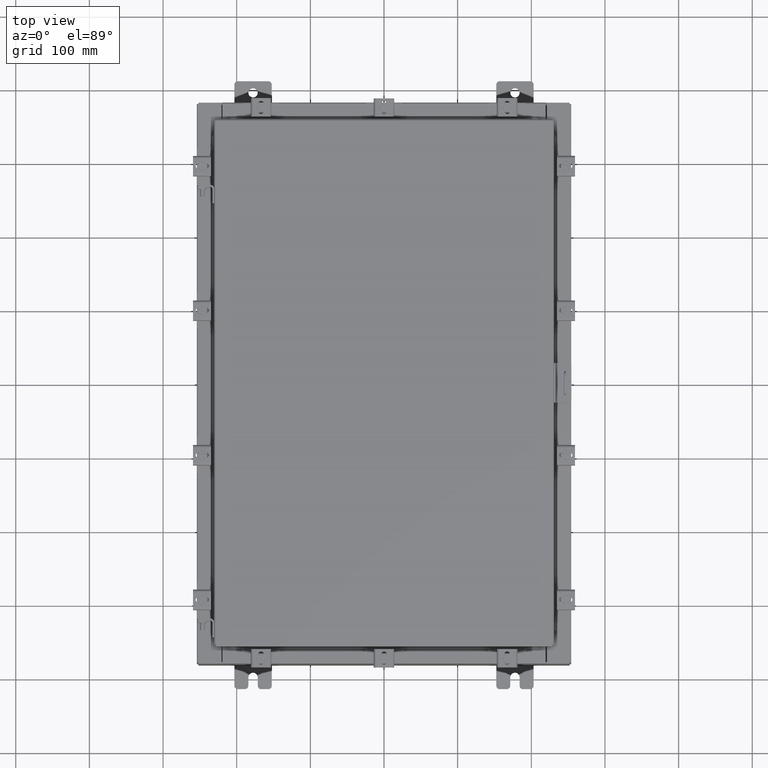
[diagram: clean part render]
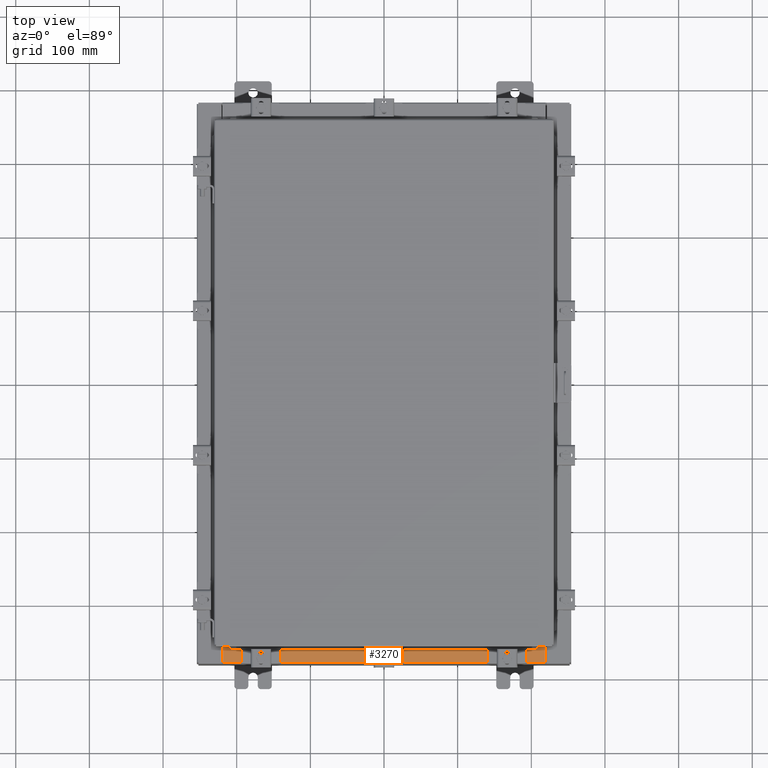
[diagram: same view with one face highlighted and labeled with its STEP entity id]
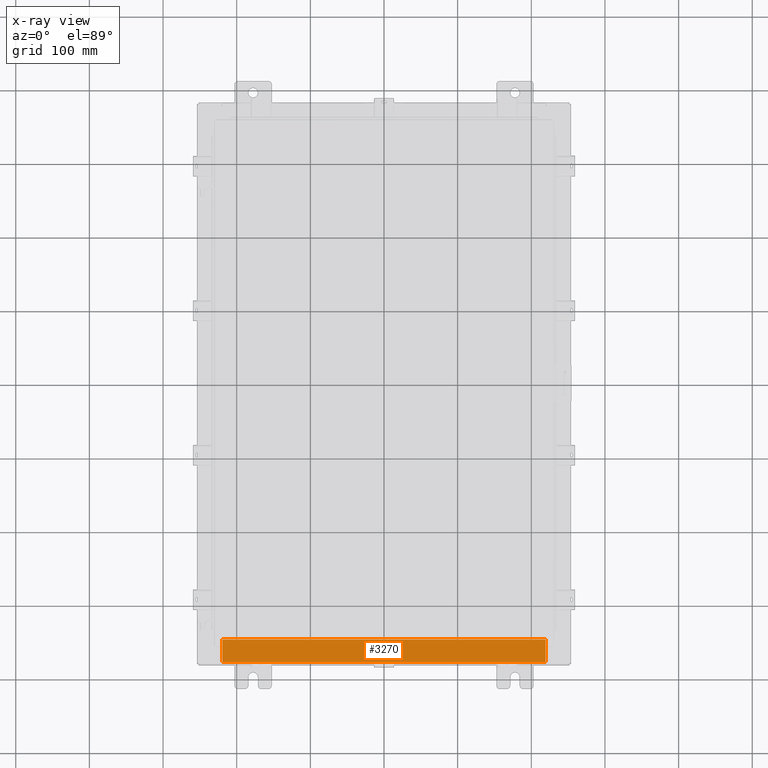
[diagram: x-ray of the same camera — body ghosted, the highlighted face saturated]
A machine part, top view. The second image highlights one B-rep face of the part: STEP entity #3270.
The next image is the same camera in x-ray: the body ghosted, the highlighted face saturated — about 0% of this face is hidden behind the body in this view.
In plain terms, the highlighted planar face has unit normal (-0, -0, 1).
Its self-contained STEP definition (entity closure, byte-faithful):
#539 = LINE ( 'NONE', #17592, #11724 ) ;
#1010 = EDGE_CURVE ( 'NONE', #10063, #13576, #539, .T. ) ;
#3270 = ADVANCED_FACE ( 'NONE', ( #22580 ), #12285, .T. ) ;
#3348 = VECTOR ( 'NONE', #11915, 39.37007874015748100 ) ;
#3653 = VECTOR ( 'NONE', #15611, 39.37007874015748100 ) ;
#4773 = ORIENTED_EDGE ( 'NONE', *, *, #12245, .T. ) ;
#5842 = EDGE_CURVE ( 'NONE', #20852, #10063, #7524, .T. ) ;
#6671 = CARTESIAN_POINT ( 'NONE',  ( -8.637200000000000000, -0.07469999999999973900, 3.000000000000000900 ) ) ;
#7062 = VERTEX_POINT ( 'NONE', #9865 ) ;
#7524 = LINE ( 'NONE', #22609, #3348 ) ;
#7616 = ORIENTED_EDGE ( 'NONE', *, *, #5842, .F. ) ;
#8249 = DIRECTION ( 'NONE',  ( -1.000000000000000000, 0.0000000000000000000, 0.0000000000000000000 ) ) ;
#8400 = LINE ( 'NONE', #6671, #3653 ) ;
#8732 = DIRECTION ( 'NONE',  ( 0.0000000000000000000, 3.566381192773190000E-015, 1.000000000000000000 ) ) ;
#9403 = CARTESIAN_POINT ( 'NONE',  ( 8.637200000000000000, -0.08769999999999965300, 3.000000000000000900 ) ) ;
#9865 = CARTESIAN_POINT ( 'NONE',  ( -8.637200000000000000, -0.08770000000000000000, 3.000000000000000900 ) ) ;
#10063 = VERTEX_POINT ( 'NONE', #23099 ) ;
#10363 = ORIENTED_EDGE ( 'NONE', *, *, #19435, .F. ) ;
#10382 = DIRECTION ( 'NONE',  ( -1.000000000000000000, 3.162886113166609200E-017, -1.128005754888089100E-031 ) ) ;
#11724 = VECTOR ( 'NONE', #8249, 39.37007874015748100 ) ;
#11915 = DIRECTION ( 'NONE',  ( -0.0000000000000000000, -1.000000000000000000, 3.566381192773190000E-015 ) ) ;
#12138 = ORIENTED_EDGE ( 'NONE', *, *, #1010, .F. ) ;
#12245 = EDGE_CURVE ( 'NONE', #20852, #7062, #17468, .T. ) ;
#12285 = PLANE ( 'NONE',  #19827 ) ;
#12737 = VECTOR ( 'NONE', #10382, 39.37007874015748100 ) ;
#13576 = VERTEX_POINT ( 'NONE', #19887 ) ;
#15611 = DIRECTION ( 'NONE',  ( -0.0000000000000000000, 1.000000000000000000, -3.566381192773190000E-015 ) ) ;
#15725 = CARTESIAN_POINT ( 'NONE',  ( -2.773851121247453900E-018, -0.08770000000000000000, 3.000000000000001300 ) ) ;
#17468 = LINE ( 'NONE', #15725, #12737 ) ;
#17592 = CARTESIAN_POINT ( 'NONE',  ( 8.637200000000000000, -1.287299999999999900, 3.000000000000005300 ) ) ;
#19435 = EDGE_CURVE ( 'NONE', #13576, #7062, #8400, .T. ) ;
#19447 = CARTESIAN_POINT ( 'NONE',  ( 0.0000000000000000000, 1.069354855923099900E-014, 3.000000000000000900 ) ) ;
#19827 = AXIS2_PLACEMENT_3D ( 'NONE', #19447, #8732, #21232 ) ;
#19887 = CARTESIAN_POINT ( 'NONE',  ( -8.637200000000000000, -1.287299999999999200, 3.000000000000005300 ) ) ;
#20852 = VERTEX_POINT ( 'NONE', #9403 ) ;
#21232 = DIRECTION ( 'NONE',  ( 0.0000000000000000000, -1.000000000000000000, 3.566381192773190000E-015 ) ) ;
#21403 = EDGE_LOOP ( 'NONE', ( #10363, #12138, #7616, #4773 ) ) ;
#22580 = FACE_OUTER_BOUND ( 'NONE', #21403, .T. ) ;
#22609 = CARTESIAN_POINT ( 'NONE',  ( 8.637200000000000000, -1.300299999999999800, 3.000000000000005300 ) ) ;
#23099 = CARTESIAN_POINT ( 'NONE',  ( 8.637200000000000000, -1.287299999999999900, 3.000000000000005300 ) ) ;